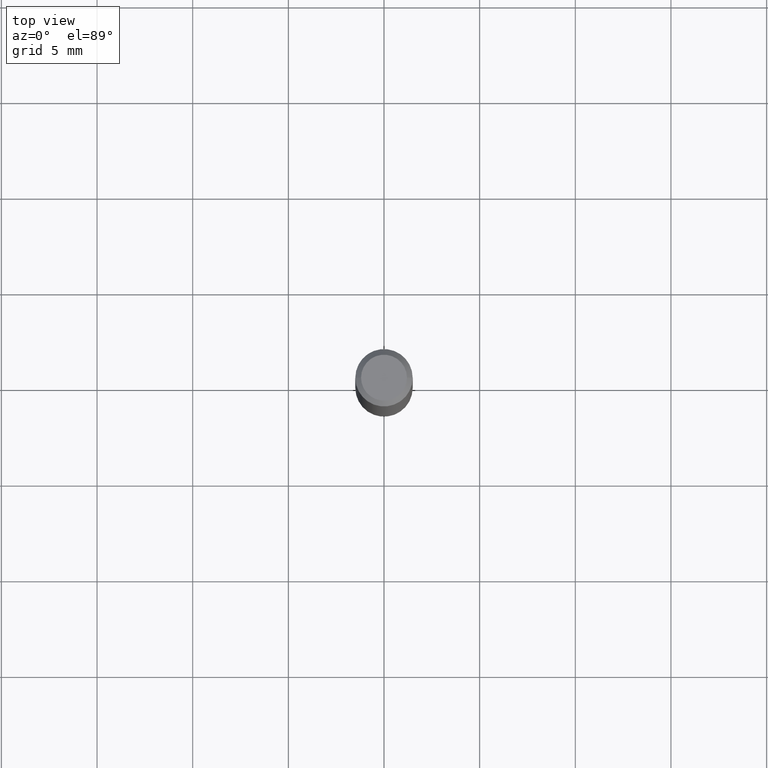
[diagram: clean part render]
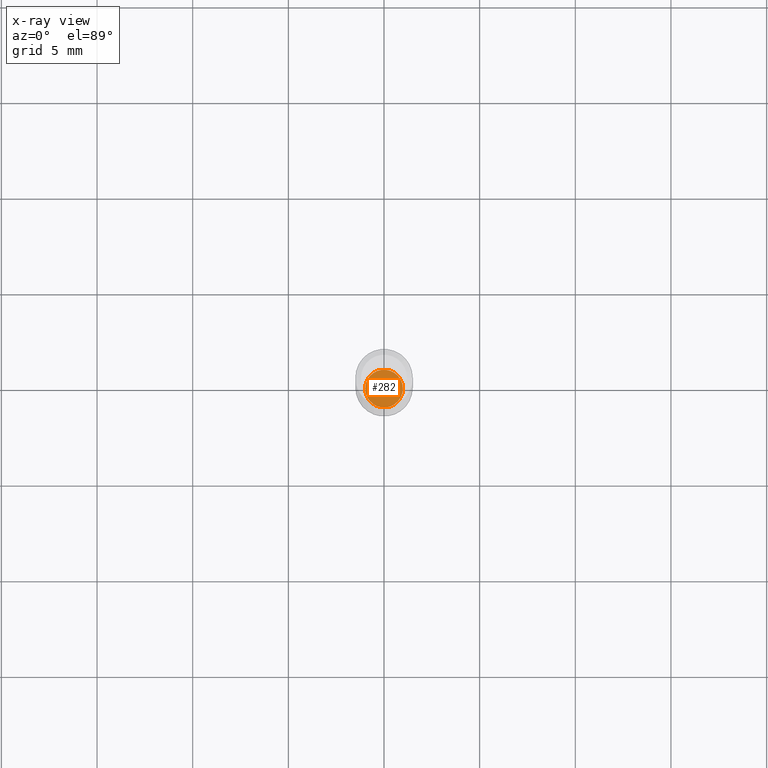
[diagram: x-ray — body ghosted, one internal face saturated and labeled with its STEP entity id]
A machine part, top view, then the same camera in x-ray: the body is ghosted and one INTERNAL B-rep face — a face not visible from any outside direction — is saturated and labeled: STEP entity #282.
In plain terms, the highlighted planar face has unit normal (-0, 0, 1).
Its self-contained STEP definition (entity closure, byte-faithful):
#19 = DIRECTION ( 'NONE',  ( -2.438088387897960049E-29, 3.491481338843145188E-15, 1.000000000000000000 ) ) ;
#62 = EDGE_CURVE ( 'NONE', #196, #79, #411, .T. ) ;
#63 = CARTESIAN_POINT ( 'NONE',  ( 9.556573727066734222E-29, 4.599560915279260677E-15, -1.299199999999999688 ) ) ;
#64 = CIRCLE ( 'NONE', #100, 0.03885000000000000259 ) ;
#79 = VERTEX_POINT ( 'NONE', #218 ) ;
#94 = PLANE ( 'NONE',  #308 ) ;
#100 = AXIS2_PLACEMENT_3D ( 'NONE', #153, #446, #408 ) ;
#101 = DIRECTION ( 'NONE',  ( 1.000000000000000000, -6.982962677686256455E-15, 0.000000000000000000 ) ) ;
#140 = FACE_OUTER_BOUND ( 'NONE', #268, .T. ) ;
#153 = CARTESIAN_POINT ( 'NONE',  ( 3.177153072995728197E-29, -4.536132555425013945E-15, -1.299199999999999688 ) ) ;
#163 = ORIENTED_EDGE ( 'NONE', *, *, #368, .F. ) ;
#164 = CARTESIAN_POINT ( 'NONE',  ( -0.03885000000000000259, -4.257437475408104247E-15, -1.299199999999999688 ) ) ;
#173 = DIRECTION ( 'NONE',  ( 1.000000000000000000, -6.982962677686265922E-15, 4.876176775795935793E-29 ) ) ;
#183 = ORIENTED_EDGE ( 'NONE', *, *, #62, .F. ) ;
#196 = VERTEX_POINT ( 'NONE', #164 ) ;
#208 = AXIS2_PLACEMENT_3D ( 'NONE', #487, #244, #101 ) ;
#218 = CARTESIAN_POINT ( 'NONE',  ( 0.03885000000000000259, -4.807420655453125065E-15, -1.299199999999999688 ) ) ;
#244 = DIRECTION ( 'NONE',  ( -2.445468806185136597E-29, 3.491481338843145583E-15, 1.000000000000000000 ) ) ;
#268 = EDGE_LOOP ( 'NONE', ( #163, #183 ) ) ;
#282 = ADVANCED_FACE ( 'NONE', ( #140 ), #94, .F. ) ;
#308 = AXIS2_PLACEMENT_3D ( 'NONE', #63, #19, #173 ) ;
#368 = EDGE_CURVE ( 'NONE', #79, #196, #64, .T. ) ;
#408 = DIRECTION ( 'NONE',  ( 1.000000000000000000, -6.982962677686256455E-15, 0.000000000000000000 ) ) ;
#411 = CIRCLE ( 'NONE', #208, 0.03885000000000000259 ) ;
#446 = DIRECTION ( 'NONE',  ( -2.445468806185136597E-29, 3.491481338843145583E-15, 1.000000000000000000 ) ) ;
#487 = CARTESIAN_POINT ( 'NONE',  ( 3.177153072995728197E-29, -4.536132555425013945E-15, -1.299199999999999688 ) ) ;